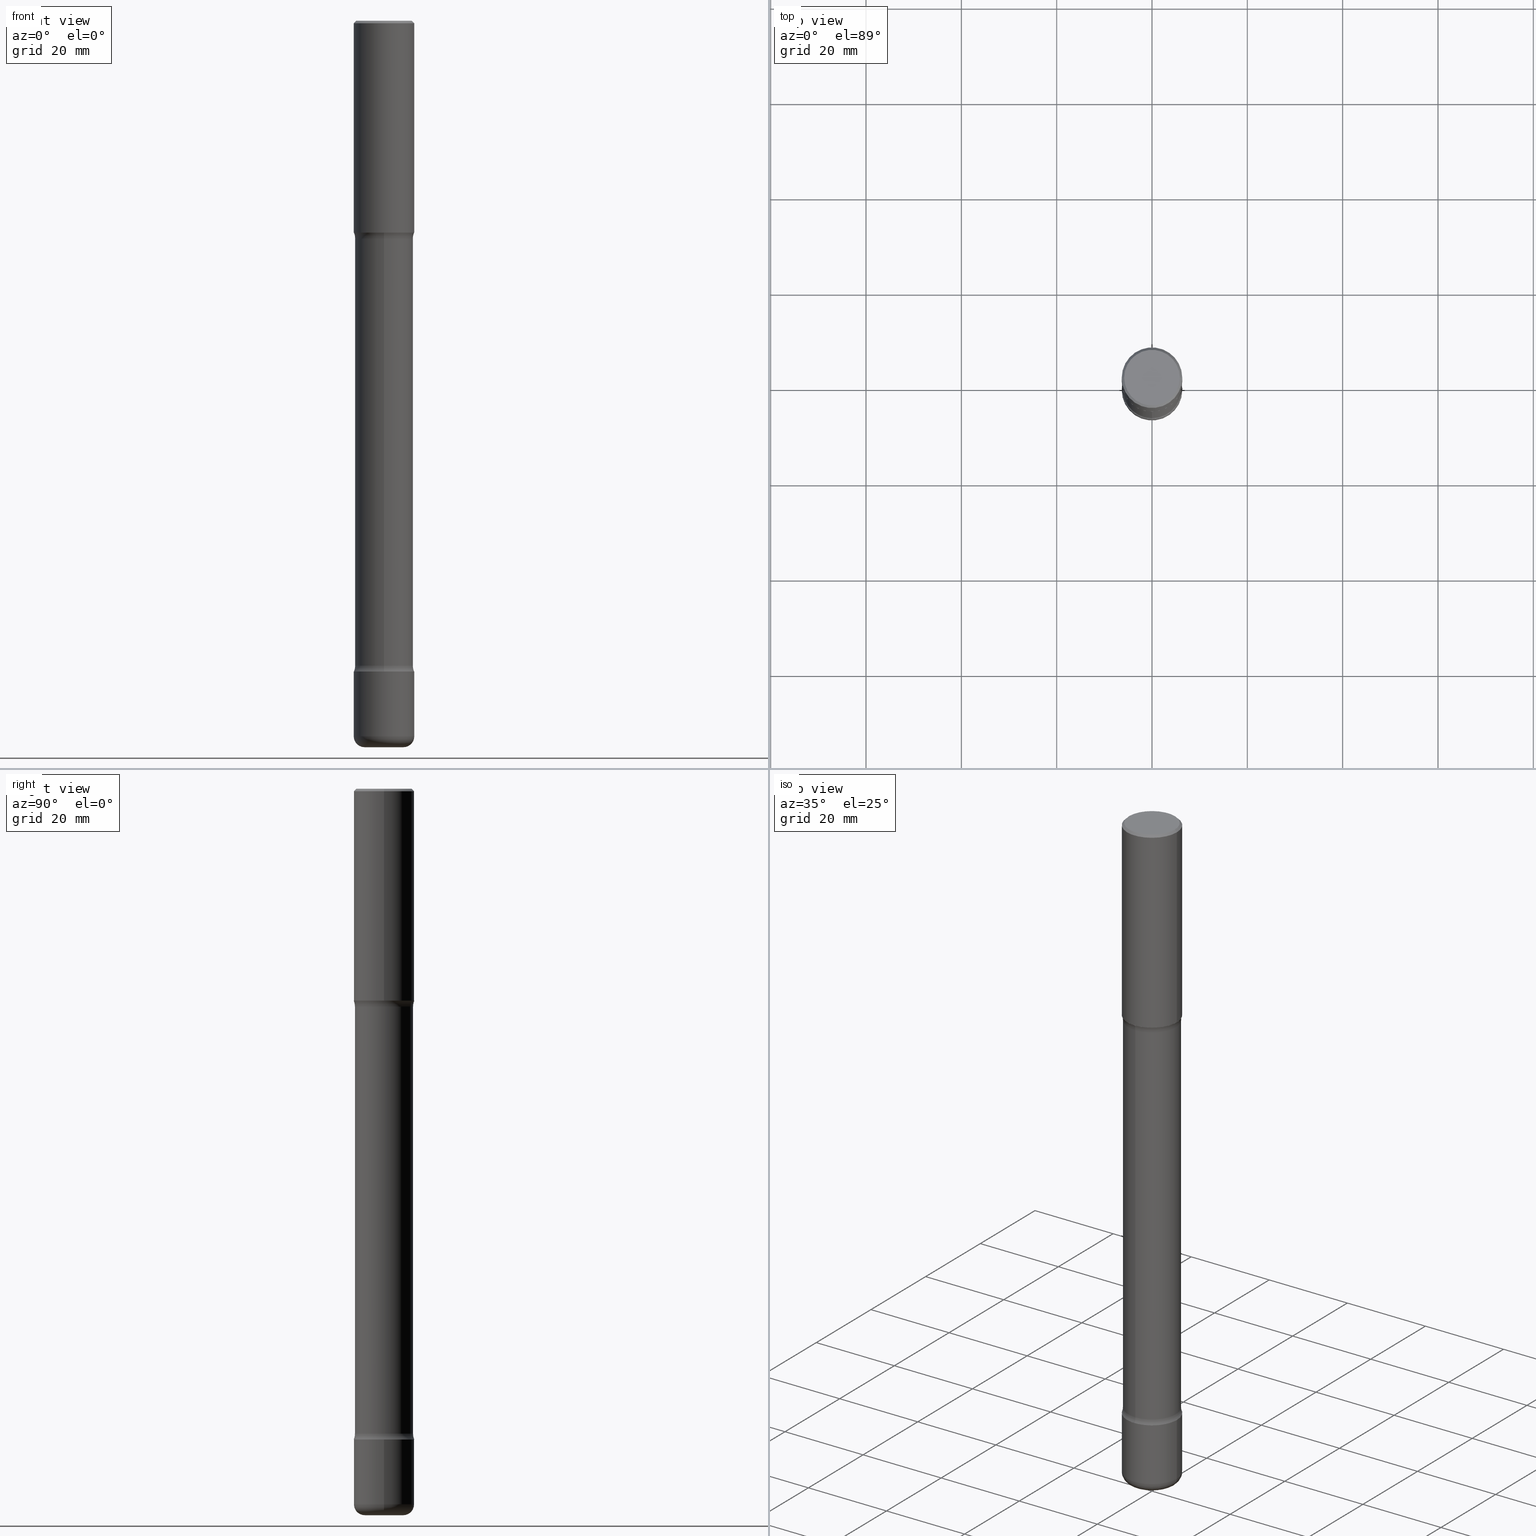
[diagram: canonical four-view strip — front | top / right | iso, engineering-drawing reading convention]
A machine part, canonical four-view strip (front | top / right | iso — engineering-drawing reading convention). The complete STEP part file that produces these views, byte-faithful:
ISO-10303-21;
HEADER;
FILE_DESCRIPTION (( 'STEP AP203' ),
    '1' );
FILE_NAME ('35801.STEP',
    '2024-03-01T23:29:01',
    ( '' ),
    ( '' ),
    'SwSTEP 2.0',
    'SolidWorks 2023',
    '' );
FILE_SCHEMA (( 'CONFIG_CONTROL_DESIGN' ));
ENDSEC;

DATA;
#1 = ORIENTED_EDGE ( 'NONE', *, *, #185, .T. ) ;
#2 = FACE_OUTER_BOUND ( 'NONE', #89, .T. ) ;
#3 = DIRECTION ( 'NONE',  ( 1.000000000000000000, -6.860497997771530774E-15, 4.843475318745101421E-29 ) ) ;
#4 = CARTESIAN_POINT ( 'NONE',  ( 4.890937612370285420E-31, -6.982962677686308865E-17, -0.02000000000000005246 ) ) ;
#5 = PRODUCT_RELATED_PRODUCT_CATEGORY ( 'detail', '', ( #362 ) ) ;
#6 = PRODUCT_DEFINITION_SHAPE ( 'NONE', 'NONE',  #260 ) ;
#7 = CARTESIAN_POINT ( 'NONE',  ( 4.279570410823991847E-29, -6.110092342975509404E-15, -1.750000000000001332 ) ) ;
#8 = ORIENTED_EDGE ( 'NONE', *, *, #151, .F. ) ;
#9 = CARTESIAN_POINT ( 'NONE',  ( 2.548781377355618064E-15, 0.3649999999999815614, -5.326010205144338983 ) ) ;
#10 = CC_DESIGN_APPROVAL ( #150, ( #260 ) ) ;
#11 = VERTEX_POINT ( 'NONE', #97 ) ;
#12 = CLOSED_SHELL ( 'NONE', ( #541, #172, #281, #503, #255, #32 ) ) ;
#13 = DIRECTION ( 'NONE',  ( 6.982962677686265922E-15, 1.000000000000000000, -4.370956789862816416E-15 ) ) ;
#14 = DIRECTION ( 'NONE',  ( -6.982962677686267499E-15, -1.000000000000000000, 0.000000000000000000 ) ) ;
#15 = EDGE_CURVE ( 'NONE', #228, #421, #285, .T. ) ;
#16 = ORIENTED_EDGE ( 'NONE', *, *, #476, .F. ) ;
#17 = UNCERTAINTY_MEASURE_WITH_UNIT (LENGTH_MEASURE( 1.000000000000000082E-05 ), #267, 'distance_accuracy_value', 'NONE');
#18 = VERTEX_POINT ( 'NONE', #368 ) ;
#19 = DIRECTION ( 'NONE',  ( -1.000000000000000000, 6.982962677686265922E-15, -4.876176775795935793E-29 ) ) ;
#20 = APPROVAL_STATUS ( 'not_yet_approved' ) ;
#21 = DIRECTION ( 'NONE',  ( -1.000000000000000000, 6.982962677686265922E-15, -4.876176775795935793E-29 ) ) ;
#22 = AXIS2_PLACEMENT_3D ( 'NONE', #243, #199, #13 ) ;
#23 = AXIS2_PLACEMENT_3D ( 'NONE', #25, #211, #543 ) ;
#24 = DIRECTION ( 'NONE',  ( 6.982962677686265922E-15, 1.000000000000000000, -3.414809992080321627E-15 ) ) ;
#25 = CARTESIAN_POINT ( 'NONE',  ( 1.445272064455416016E-28, -2.063465471256299260E-14, -5.910000000000001030 ) ) ;
#26 = CYLINDRICAL_SURFACE ( 'NONE', #246, 0.2400000000000002409 ) ;
#27 = CALENDAR_DATE ( 2024, 1, 3 ) ;
#28 = VECTOR ( 'NONE', #377, 39.37007874015748143 ) ;
#29 = DIRECTION ( 'NONE',  ( 1.000000000000000000, -6.982962677686265922E-15, 4.876225828469306079E-29 ) ) ;
#30 = AXIS2_PLACEMENT_3D ( 'NONE', #163, #296, #419 ) ;
#31 = VERTEX_POINT ( 'NONE', #154 ) ;
#32 = ADVANCED_FACE ( 'NONE', ( #447 ), #53, .F. ) ;
#33 = ADVANCED_FACE ( 'NONE', ( #293 ), #534, .F. ) ;
#34 = CIRCLE ( 'NONE', #146, 0.2500000000000005551 ) ;
#35 = CIRCLE ( 'NONE', #247, 0.1250000000000000555 ) ;
#36 = ORIENTED_EDGE ( 'NONE', *, *, #399, .T. ) ;
#37 = EDGE_LOOP ( 'NONE', ( #444, #519, #442, #381 ) ) ;
#38 = LINE ( 'NONE', #518, #51 ) ;
#39 = CARTESIAN_POINT ( 'NONE',  ( -2.504081769186479631E-15, -0.3650000000000186984, -5.326010205144336318 ) ) ;
#40 = CIRCLE ( 'NONE', #123, 0.2300000000000001210 ) ;
#41 = CC_DESIGN_DATE_AND_TIME_ASSIGNMENT ( #475, #273, ( #260 ) ) ;
#42 = ORIENTED_EDGE ( 'NONE', *, *, #448, .F. ) ;
#43 = DIRECTION ( 'NONE',  ( -1.000000000000000000, 6.982962677686265922E-15, -4.883557194083112901E-29 ) ) ;
#44 = DIRECTION ( 'NONE',  ( 6.860497997771529985E-15, 1.000000000000000000, 0.000000000000000000 ) ) ;
#45 = CARTESIAN_POINT ( 'NONE',  ( 2.548781377355529317E-15, 0.3649999999999934408, -1.798989794855667235 ) ) ;
#46 = PLANE ( 'NONE',  #350 ) ;
#47 = VERTEX_POINT ( 'NONE', #202 ) ;
#48 = PERSON_AND_ORGANIZATION_ROLE ( 'design_supplier' ) ;
#49 = ADVANCED_FACE ( 'NONE', ( #366 ), #254, .T. ) ;
#50 = EDGE_CURVE ( 'NONE', #355, #387, #538, .T. ) ;
#51 = VECTOR ( 'NONE', #482, 39.37007874015748143 ) ;
#52 = CLOSED_SHELL ( 'NONE', ( #49, #170, #337, #343, #68, #379 ) ) ;
#53 = PLANE ( 'NONE',  #378 ) ;
#54 = DATE_TIME_ROLE ( 'classification_date' ) ;
#55 = DIRECTION ( 'NONE',  ( -2.445468806185136597E-29, 3.491481338843145583E-15, 1.000000000000000000 ) ) ;
#56 = EDGE_CURVE ( 'NONE', #173, #421, #467, .T. ) ;
#57 = CIRCLE ( 'NONE', #528, 0.2399999999999999356 ) ;
#58 = APPLICATION_CONTEXT ( 'configuration controlled 3d designs of mechanical parts and assemblies' ) ;
#59 = AXIS2_PLACEMENT_3D ( 'NONE', #359, #73, #443 ) ;
#60 = DIRECTION ( 'NONE',  ( 6.982962677686265922E-15, 1.000000000000000000, -3.272933499350004525E-15 ) ) ;
#61 = CYLINDRICAL_SURFACE ( 'NONE', #227, 0.2500000000000003886 ) ;
#62 = EDGE_CURVE ( 'NONE', #302, #228, #96, .T. ) ;
#63 = EDGE_CURVE ( 'NONE', #125, #94, #435, .T. ) ;
#64 = AXIS2_PLACEMENT_3D ( 'NONE', #140, #321, #451 ) ;
#65 = DIRECTION ( 'NONE',  ( -2.445468806185136597E-29, 3.491481338843145583E-15, 1.000000000000000000 ) ) ;
#66 = ORIENTED_EDGE ( 'NONE', *, *, #288, .T. ) ;
#67 = DIRECTION ( 'NONE',  ( -1.000000000000000000, 6.982962677686267499E-15, 0.000000000000000000 ) ) ;
#68 = ADVANCED_FACE ( 'NONE', ( #397 ), #365, .F. ) ;
#69 = ORIENTED_EDGE ( 'NONE', *, *, #232, .F. ) ;
#70 = COORDINATED_UNIVERSAL_TIME_OFFSET ( 5, 0, .BEHIND. ) ;
#71 = EDGE_LOOP ( 'NONE', ( #209, #558, #478, #391 ) ) ;
#72 = LOCAL_TIME ( 18, 29, 1.000000000000000000, #559 ) ;
#73 = DIRECTION ( 'NONE',  ( 2.598079946832093802E-29, -3.272933499350004920E-15, -1.000000000000000000 ) ) ;
#74 = AXIS2_PLACEMENT_3D ( 'NONE', #257, #413, #24 ) ;
#75 = CIRCLE ( 'NONE', #526, 0.2500000000000003331 ) ;
#76 = FACE_OUTER_BOUND ( 'NONE', #462, .T. ) ;
#77 = EDGE_LOOP ( 'NONE', ( #216, #524 ) ) ;
#78 = CARTESIAN_POINT ( 'NONE',  ( 1.302459181810417859E-28, -1.859566524174961022E-14, -5.326010205144338094 ) ) ;
#79 = VERTEX_POINT ( 'NONE', #144 ) ;
#80 = EDGE_CURVE ( 'NONE', #18, #521, #412, .T. ) ;
#81 = CARTESIAN_POINT ( 'NONE',  ( 0.2500000000000001110, -1.784954126219746583E-15, -0.02000000000000005246 ) ) ;
#82 = CARTESIAN_POINT ( 'NONE',  ( 0.000000000000000000, 0.000000000000000000, 0.000000000000000000 ) ) ;
#83 = EDGE_LOOP ( 'NONE', ( #485, #120, #547, #188 ) ) ;
#84 = PERSON_AND_ORGANIZATION ( #408, #229 ) ;
#85 = APPROVAL_STATUS ( 'not_yet_approved' ) ;
#86 = AXIS2_PLACEMENT_3D ( 'NONE', #7, #535, #492 ) ;
#87 = CARTESIAN_POINT ( 'NONE',  ( -2.504081769186573506E-15, -0.3650000000000074851, -1.798989794855665014 ) ) ;
#88 = CIRCLE ( 'NONE', #292, 0.2400000000000005185 ) ;
#89 = EDGE_LOOP ( 'NONE', ( #536, #294, #181, #428 ) ) ;
#90 = CARTESIAN_POINT ( 'NONE',  ( 4.890937612370285420E-31, -6.982962677686308865E-17, -0.02000000000000005246 ) ) ;
#91 = ORIENTED_EDGE ( 'NONE', *, *, #298, .T. ) ;
#92 = PERSON_AND_ORGANIZATION ( #408, #229 ) ;
#93 = EDGE_CURVE ( 'NONE', #302, #173, #555, .T. ) ;
#94 = VERTEX_POINT ( 'NONE', #145 ) ;
#95 = CARTESIAN_POINT ( 'NONE',  ( 0.2500000000000006661, -2.238039538198456243E-14, -5.910000000000001030 ) ) ;
#96 = CIRCLE ( 'NONE', #384, 0.2500000000000003331 ) ;
#97 = CARTESIAN_POINT ( 'NONE',  ( 0.2300000000000001210, -1.681434332853599997E-15, 4.268512490111905999E-18 ) ) ;
#98 = DIRECTION ( 'NONE',  ( 2.598079946832093802E-29, -3.272933499350004920E-15, -1.000000000000000000 ) ) ;
#99 = DIRECTION ( 'NONE',  ( 7.105427357601001859E-15, 1.000000000000000000, -3.491481338843145583E-15 ) ) ;
#100 = DIRECTION ( 'NONE',  ( -2.445468806185136597E-29, 3.491481338843145583E-15, 1.000000000000000000 ) ) ;
#101 = CARTESIAN_POINT ( 'NONE',  ( -0.2500000000000001110, 1.675911042644704563E-15, -0.02000000000000005246 ) ) ;
#102 = CARTESIAN_POINT ( 'NONE',  ( 1.314439483324511369E-28, -1.876671219628191278E-14, -5.375000000000001776 ) ) ;
#103 = CC_DESIGN_PERSON_AND_ORGANIZATION_ASSIGNMENT ( #84, #335, ( #157 ) ) ;
#104 = CARTESIAN_POINT ( 'NONE',  ( -0.2500000000000003331, -1.313604145475932337E-15, -1.750000000000001332 ) ) ;
#105 = ORIENTED_EDGE ( 'NONE', *, *, #549, .T. ) ;
#106 = AXIS2_PLACEMENT_3D ( 'NONE', #270, #315, #431 ) ;
#107 = EDGE_LOOP ( 'NONE', ( #516, #331, #414, #119 ) ) ;
#108 = CARTESIAN_POINT ( 'NONE',  ( -0.2500000000000001110, 1.675911042644704563E-15, -0.02000000000000005246 ) ) ;
#109 = CIRCLE ( 'NONE', #193, 0.2399999999999999356 ) ;
#110 = LOCAL_TIME ( 18, 29, 1.000000000000000000, #149 ) ;
#111 = EDGE_CURVE ( 'NONE', #523, #521, #34, .T. ) ;
#112 = ORIENTED_EDGE ( 'NONE', *, *, #370, .F. ) ;
#113 = AXIS2_PLACEMENT_3D ( 'NONE', #87, #197, #44 ) ;
#114 = ORIENTED_EDGE ( 'NONE', *, *, #537, .T. ) ;
#115 = PERSON_AND_ORGANIZATION_ROLE ( 'creator' ) ;
#116 = DIRECTION ( 'NONE',  ( -2.445468806185136597E-29, 3.491481338843145583E-15, 1.000000000000000000 ) ) ;
#117 = DIRECTION ( 'NONE',  ( 1.000000000000000000, -6.982962677686265922E-15, 4.876225828469306079E-29 ) ) ;
#118 = CARTESIAN_POINT ( 'NONE',  ( 1.476819480001517141E-28, -2.081229563337566536E-14, -6.000000000000001776 ) ) ;
#119 = ORIENTED_EDGE ( 'NONE', *, *, #185, .F. ) ;
#120 = ORIENTED_EDGE ( 'NONE', *, *, #62, .T. ) ;
#121 = AXIS2_PLACEMENT_3D ( 'NONE', #182, #189, #349 ) ;
#122 = DIRECTION ( 'NONE',  ( 6.982962677686265922E-15, 1.000000000000000000, -3.272933499350004920E-15 ) ) ;
#123 = AXIS2_PLACEMENT_3D ( 'NONE', #513, #183, #29 ) ;
#124 = FACE_OUTER_BOUND ( 'NONE', #83, .T. ) ;
#125 = VERTEX_POINT ( 'NONE', #213 ) ;
#126 = ADVANCED_FACE ( 'NONE', ( #542 ), #446, .F. ) ;
#127 = DIRECTION ( 'NONE',  ( 2.598079946832093802E-29, -3.272933499350004920E-15, -1.000000000000000000 ) ) ;
#128 = ORIENTED_EDGE ( 'NONE', *, *, #50, .T. ) ;
#129 = EDGE_LOOP ( 'NONE', ( #269, #235, #311, #268 ) ) ;
#130 = APPROVAL_DATE_TIME ( #508, #223 ) ;
#131 = LINE ( 'NONE', #357, #307 ) ;
#132 = PERSON_AND_ORGANIZATION_ROLE ( 'creator' ) ;
#133 = CIRCLE ( 'NONE', #466, 0.1250000000000000555 ) ;
#134 = VECTOR ( 'NONE', #263, 39.37007874015748143 ) ;
#135 = CC_DESIGN_PERSON_AND_ORGANIZATION_ASSIGNMENT ( #313, #132, ( #332 ) ) ;
#136 = CIRCLE ( 'NONE', #217, 0.2300000000000001210 ) ;
#137 = CARTESIAN_POINT ( 'NONE',  ( -1.646519519465021226E-15, -0.2400000000000210298, -6.000000000000000888 ) ) ;
#138 = FACE_OUTER_BOUND ( 'NONE', #37, .T. ) ;
#139 = EDGE_CURVE ( 'NONE', #233, #18, #300, .T. ) ;
#140 = CARTESIAN_POINT ( 'NONE',  ( -3.261302786302777691E-29, -4.226060494179454767E-14, -5.375000000000000888 ) ) ;
#141 = ORIENTED_EDGE ( 'NONE', *, *, #390, .T. ) ;
#142 = DIRECTION ( 'NONE',  ( 2.598079946832093802E-29, -3.272933499350004920E-15, -1.000000000000000000 ) ) ;
#143 = DIRECTION ( 'NONE',  ( 2.445468806185136597E-29, -3.491481338843145583E-15, -1.000000000000000000 ) ) ;
#144 = CARTESIAN_POINT ( 'NONE',  ( -1.715124499442752926E-15, -0.2500000000000189293, -5.375000000000000888 ) ) ;
#145 = CARTESIAN_POINT ( 'NONE',  ( -1.715124499442852322E-15, -0.2500000000000079381, -1.750000000000000444 ) ) ;
#146 = AXIS2_PLACEMENT_3D ( 'NONE', #539, #100, #371 ) ;
#147 = DIRECTION ( 'NONE',  ( -2.445468806185136597E-29, 3.491481338843145583E-15, 1.000000000000000000 ) ) ;
#148 = CARTESIAN_POINT ( 'NONE',  ( 0.000000000000000000, 0.000000000000000000, 0.000000000000000000 ) ) ;
#149 = COORDINATED_UNIVERSAL_TIME_OFFSET ( 5, 0, .BEHIND. ) ;
#150 = APPROVAL ( #424, 'UNSPECIFIED' ) ;
#151 = EDGE_CURVE ( 'NONE', #387, #355, #425, .T. ) ;
#152 = EDGE_CURVE ( 'NONE', #11, #264, #40, .T. ) ;
#153 = PLANE ( 'NONE',  #552 ) ;
#154 = CARTESIAN_POINT ( 'NONE',  ( 1.675911042644746175E-15, 0.2399999999999934408, -1.798989794855667013 ) ) ;
#155 = SHAPE_DEFINITION_REPRESENTATION ( #6, #249 ) ;
#156 = PLANE ( 'NONE',  #515 ) ;
#157 = SECURITY_CLASSIFICATION ( '', '', #473 ) ;
#158 = DIRECTION ( 'NONE',  ( 2.438088387897960049E-29, -3.491481338843145188E-15, -1.000000000000000000 ) ) ;
#159 = ADVANCED_FACE ( 'NONE', ( #297 ), #26, .T. ) ;
#160 = CIRCLE ( 'NONE', #74, 0.2400000000000005185 ) ;
#161 = AXIS2_PLACEMENT_3D ( 'NONE', #470, #65, #219 ) ;
#162 = DIRECTION ( 'NONE',  ( 6.982962677686265922E-15, 1.000000000000000000, -4.370956789862816416E-15 ) ) ;
#163 = CARTESIAN_POINT ( 'NONE',  ( 0.1600000000000005584, -2.175192874099279906E-14, -5.910000000000001030 ) ) ;
#164 = ORIENTED_EDGE ( 'NONE', *, *, #210, .F. ) ;
#165 = EDGE_LOOP ( 'NONE', ( #36, #436, #69, #191 ) ) ;
#166 = CALENDAR_DATE ( 2024, 1, 3 ) ;
#167 = AXIS2_PLACEMENT_3D ( 'NONE', #4, #184, #354 ) ;
#168 = ORIENTED_EDGE ( 'NONE', *, *, #250, .F. ) ;
#169 = CIRCLE ( 'NONE', #106, 0.2500000000000005551 ) ;
#170 = ADVANCED_FACE ( 'NONE', ( #375 ), #218, .T. ) ;
#171 = DIRECTION ( 'NONE',  ( 6.982962677686265922E-15, 1.000000000000000000, -3.272933499350004920E-15 ) ) ;
#172 = ADVANCED_FACE ( 'NONE', ( #138 ), #204, .T. ) ;
#173 = VERTEX_POINT ( 'NONE', #101 ) ;
#174 = PERSON_AND_ORGANIZATION ( #408, #229 ) ;
#175 = CARTESIAN_POINT ( 'NONE',  ( 3.874772629991013764E-29, -7.032397495765489425E-15, -1.798989794855666124 ) ) ;
#176 = CARTESIAN_POINT ( 'NONE',  ( 0.2500000000000002776, -2.051245286570348262E-14, -5.375000000000001776 ) ) ;
#177 = APPROVAL_ROLE ( '' ) ;
#178 = ORIENTED_EDGE ( 'NONE', *, *, #496, .F. ) ;
#179 = AXIS2_PLACEMENT_3D ( 'NONE', #501, #55, #251 ) ;
#180 = DIRECTION ( 'NONE',  ( 6.982962677686265922E-15, 1.000000000000000000, -3.278217592397102057E-15 ) ) ;
#181 = ORIENTED_EDGE ( 'NONE', *, *, #50, .F. ) ;
#182 = CARTESIAN_POINT ( 'NONE',  ( 0.000000000000000000, 0.000000000000000000, 0.000000000000000000 ) ) ;
#183 = DIRECTION ( 'NONE',  ( -2.445468806185136597E-29, 3.491481338843145583E-15, 1.000000000000000000 ) ) ;
#184 = DIRECTION ( 'NONE',  ( -2.445468806185136597E-29, 3.491481338843145583E-15, 1.000000000000000000 ) ) ;
#185 = EDGE_CURVE ( 'NONE', #31, #47, #506, .T. ) ;
#186 = CARTESIAN_POINT ( 'NONE',  ( 1.302459181810417859E-28, -1.859566524174961022E-14, -5.326010205144338094 ) ) ;
#187 = DIRECTION ( 'NONE',  ( -2.445468806185136597E-29, 3.491481338843145583E-15, 1.000000000000000000 ) ) ;
#188 = ORIENTED_EDGE ( 'NONE', *, *, #56, .F. ) ;
#189 = DIRECTION ( 'NONE',  ( -2.445468806185136597E-29, 3.491481338843145583E-15, 1.000000000000000000 ) ) ;
#190 = VECTOR ( 'NONE', #361, 39.37007874015748143 ) ;
#191 = ORIENTED_EDGE ( 'NONE', *, *, #15, .F. ) ;
#192 = LINE ( 'NONE', #364, #190 ) ;
#193 = AXIS2_PLACEMENT_3D ( 'NONE', #327, #493, #214 ) ;
#194 = CC_DESIGN_APPROVAL ( #329, ( #157 ) ) ;
#195 = LINE ( 'NONE', #398, #318 ) ;
#196 = CARTESIAN_POINT ( 'NONE',  ( 3.726355025978772891E-29, -6.902328261138143864E-15, -1.750000000000001332 ) ) ;
#197 = DIRECTION ( 'NONE',  ( 1.000000000000000000, -6.860497997771530774E-15, 4.843475318745101421E-29 ) ) ;
#198 = VERTEX_POINT ( 'NONE', #406 ) ;
#199 = DIRECTION ( 'NONE',  ( 2.598079946832093802E-29, -3.272933499350004920E-15, -1.000000000000000000 ) ) ;
#200 = FACE_OUTER_BOUND ( 'NONE', #551, .T. ) ;
#201 = EDGE_CURVE ( 'NONE', #556, #79, #479, .T. ) ;
#202 = CARTESIAN_POINT ( 'NONE',  ( 1.745740669421611445E-15, 0.2499999999999941158, -1.750000000000001998 ) ) ;
#203 = APPROVAL_ROLE ( '' ) ;
#204 = TOROIDAL_SURFACE ( 'NONE', #271, 0.1600000000000005584, 0.09000000000000020484 ) ;
#205 = CARTESIAN_POINT ( 'NONE',  ( 1.301711542963119448E-28, -1.860637185557252676E-14, -5.326010205144338094 ) ) ;
#206 = DIRECTION ( 'NONE',  ( -2.445468806185136877E-29, 3.491481338843145188E-15, 1.000000000000000000 ) ) ;
#207 = PERSON_AND_ORGANIZATION ( #408, #229 ) ;
#208 = CALENDAR_DATE ( 2024, 1, 3 ) ;
#209 = ORIENTED_EDGE ( 'NONE', *, *, #152, .F. ) ;
#210 = EDGE_CURVE ( 'NONE', #521, #387, #195, .T. ) ;
#211 = DIRECTION ( 'NONE',  ( -2.445468806185136597E-29, 3.491481338843145583E-15, 1.000000000000000000 ) ) ;
#212 = ORIENTED_EDGE ( 'NONE', *, *, #298, .F. ) ;
#213 = CARTESIAN_POINT ( 'NONE',  ( -1.680822009453992684E-15, -0.2400000000000076239, -1.798989794855665236 ) ) ;
#214 = DIRECTION ( 'NONE',  ( 6.982962677686265922E-15, 1.000000000000000000, -4.553079989440439881E-15 ) ) ;
#215 = DIRECTION ( 'NONE',  ( 6.982962677686265922E-15, 1.000000000000000000, -4.553079989440434359E-15 ) ) ;
#216 = ORIENTED_EDGE ( 'NONE', *, *, #370, .T. ) ;
#217 = AXIS2_PLACEMENT_3D ( 'NONE', #509, #458, #117 ) ;
#218 = CONICAL_SURFACE ( 'NONE', #402, 0.2500000000000001110, 0.7853981633974476129 ) ;
#219 = DIRECTION ( 'NONE',  ( 1.000000000000000000, -6.982962677686267499E-15, 4.876176775795936353E-29 ) ) ;
#220 = COORDINATED_UNIVERSAL_TIME_OFFSET ( 5, 0, .BEHIND. ) ;
#221 = CARTESIAN_POINT ( 'NONE',  ( -0.2500000000000002220, 1.776356839400252042E-15, -1.229733772563727566E-29 ) ) ;
#222 = DIRECTION ( 'NONE',  ( 1.000000000000000000, -6.982962677686270655E-15, 0.000000000000000000 ) ) ;
#223 = APPROVAL ( #85, 'UNSPECIFIED' ) ;
#224 = DESIGN_CONTEXT ( 'detailed design', #532, 'design' ) ;
#225 = PERSON_AND_ORGANIZATION ( #408, #229 ) ;
#226 = AXIS2_PLACEMENT_3D ( 'NONE', #196, #400, #180 ) ;
#227 = AXIS2_PLACEMENT_3D ( 'NONE', #415, #380, #418 ) ;
#228 = VERTEX_POINT ( 'NONE', #394 ) ;
#229 = ORGANIZATION ( 'UNSPECIFIED', 'UNSPECIFIED', '' ) ;
#230 = LENGTH_MEASURE_WITH_UNIT ( LENGTH_MEASURE( 0.02539999999999999897 ), #240 );
#231 = DIRECTION ( 'NONE',  ( -2.445468806185136597E-29, 3.491481338843145583E-15, 1.000000000000000000 ) ) ;
#232 = EDGE_CURVE ( 'NONE', #421, #173, #453, .T. ) ;
#233 = VERTEX_POINT ( 'NONE', #522 ) ;
#234 = DIMENSIONAL_EXPONENTS ( 1.000000000000000000, 0.000000000000000000, 0.000000000000000000, 0.000000000000000000, 0.000000000000000000, 0.000000000000000000, 0.000000000000000000 ) ;
#235 = ORIENTED_EDGE ( 'NONE', *, *, #277, .T. ) ;
#236 = AXIS2_PLACEMENT_3D ( 'NONE', #323, #99, #286 ) ;
#237 = DIRECTION ( 'NONE',  ( -1.000000000000000000, 6.982962677686265922E-15, -4.883557194083112901E-29 ) ) ;
#238 = ORIENTED_EDGE ( 'NONE', *, *, #399, .F. ) ;
#239 = ORIENTED_EDGE ( 'NONE', *, *, #139, .F. ) ;
#240 =( LENGTH_UNIT ( ) NAMED_UNIT ( * ) SI_UNIT ( $, .METRE. ) );
#241 = DIRECTION ( 'NONE',  ( 1.000000000000000000, -6.982962677686269077E-15, 0.000000000000000000 ) ) ;
#242 = ORIENTED_EDGE ( 'NONE', *, *, #490, .F. ) ;
#243 = CARTESIAN_POINT ( 'NONE',  ( 1.314439483324511369E-28, -1.876671219628191278E-14, -5.375000000000001776 ) ) ;
#244 = LOCAL_TIME ( 18, 29, 1.000000000000000000, #256 ) ;
#245 = CARTESIAN_POINT ( 'NONE',  ( -0.2500000000000002776, -1.792432661502220065E-14, -5.375000000000001776 ) ) ;
#246 = AXIS2_PLACEMENT_3D ( 'NONE', #382, #98, #215 ) ;
#247 = AXIS2_PLACEMENT_3D ( 'NONE', #9, #43, #14 ) ;
#248 = ORIENTED_EDGE ( 'NONE', *, *, #261, .T. ) ;
#249 = ADVANCED_BREP_SHAPE_REPRESENTATION ( '35801', ( #452, #432, #450, #454 ), #342 ) ;
#250 = EDGE_CURVE ( 'NONE', #11, #421, #131, .T. ) ;
#251 = DIRECTION ( 'NONE',  ( 1.000000000000000000, -6.982962677686259611E-15, 0.000000000000000000 ) ) ;
#252 = CARTESIAN_POINT ( 'NONE',  ( 1.314439483324511369E-28, -1.876671219628191278E-14, -5.375000000000001776 ) ) ;
#253 = TOROIDAL_SURFACE ( 'NONE', #23, 0.1600000000000005584, 0.09000000000000020484 ) ;
#254 = CYLINDRICAL_SURFACE ( 'NONE', #504, 0.2500000000000002220 ) ;
#255 = ADVANCED_FACE ( 'NONE', ( #320 ), #61, .T. ) ;
#256 = COORDINATED_UNIVERSAL_TIME_OFFSET ( 5, 0, .BEHIND. ) ;
#257 = CARTESIAN_POINT ( 'NONE',  ( 3.853634429592694340E-29, -7.062668601847533833E-15, -1.798989794855666124 ) ) ;
#258 = ORIENTED_EDGE ( 'NONE', *, *, #441, .F. ) ;
#259 = AXIS2_PLACEMENT_3D ( 'NONE', #416, #116, #463 ) ;
#260 = PRODUCT_DEFINITION ( 'UNKNOWN', '', #332, #224 ) ;
#261 = EDGE_CURVE ( 'NONE', #264, #173, #540, .T. ) ;
#262 = DIRECTION ( 'NONE',  ( 6.982962677686265922E-15, 1.000000000000000000, -4.553079989440434359E-15 ) ) ;
#263 = DIRECTION ( 'NONE',  ( -2.445468806185136877E-29, 3.491481338843145188E-15, 1.000000000000000000 ) ) ;
#264 = VERTEX_POINT ( 'NONE', #338 ) ;
#265 = APPROVAL_PERSON_ORGANIZATION ( #553, #150, #510 ) ;
#266 = CARTESIAN_POINT ( 'NONE',  ( 4.890937612370285420E-31, -6.982962677686308865E-17, -0.02000000000000005246 ) ) ;
#267 =( CONVERSION_BASED_UNIT ( 'INCH', #230 ) LENGTH_UNIT ( ) NAMED_UNIT ( #234 ) );
#268 = ORIENTED_EDGE ( 'NONE', *, *, #422, .F. ) ;
#269 = ORIENTED_EDGE ( 'NONE', *, *, #80, .F. ) ;
#270 = CARTESIAN_POINT ( 'NONE',  ( 1.445272064455416016E-28, -2.063465471256299260E-14, -5.910000000000001030 ) ) ;
#271 = AXIS2_PLACEMENT_3D ( 'NONE', #440, #147, #363 ) ;
#272 = AXIS2_PLACEMENT_3D ( 'NONE', #45, #237, #434 ) ;
#273 = DATE_TIME_ROLE ( 'creation_date' ) ;
#274 = CC_DESIGN_PERSON_AND_ORGANIZATION_ASSIGNMENT ( #92, #48, ( #332 ) ) ;
#275 = ORIENTED_EDGE ( 'NONE', *, *, #422, .T. ) ;
#276 = DIRECTION ( 'NONE',  ( -1.000000000000000000, 6.982962677686267499E-15, 0.000000000000000000 ) ) ;
#277 = EDGE_CURVE ( 'NONE', #18, #233, #560, .T. ) ;
#278 = CYLINDRICAL_SURFACE ( 'NONE', #121, 0.2500000000000003886 ) ;
#279 = FACE_OUTER_BOUND ( 'NONE', #460, .T. ) ;
#280 = ORIENTED_EDGE ( 'NONE', *, *, #496, .T. ) ;
#281 = ADVANCED_FACE ( 'NONE', ( #455 ), #153, .T. ) ;
#282 = AXIS2_PLACEMENT_3D ( 'NONE', #186, #142, #389 ) ;
#283 = CIRCLE ( 'NONE', #30, 0.09000000000000020484 ) ;
#284 = DIRECTION ( 'NONE',  ( 1.000000000000000000, -6.982962677686267499E-15, 0.000000000000000000 ) ) ;
#285 = LINE ( 'NONE', #449, #497 ) ;
#286 = DIRECTION ( 'NONE',  ( -1.000000000000000000, 7.105427357601017636E-15, 0.000000000000000000 ) ) ;
#287 = DIRECTION ( 'NONE',  ( -2.445468806185136597E-29, 3.491481338843145583E-15, 1.000000000000000000 ) ) ;
#288 = EDGE_CURVE ( 'NONE', #198, #301, #57, .T. ) ;
#289 = CARTESIAN_POINT ( 'NONE',  ( -3.261302786302777691E-29, -4.226060494179454767E-14, -5.375000000000000888 ) ) ;
#290 = TOROIDAL_SURFACE ( 'NONE', #282, 0.3650000000000001577, 0.1250000000000000555 ) ;
#291 = CLOSED_SHELL ( 'NONE', ( #351, #383, #527, #126, #314, #33, #525, #159 ) ) ;
#292 = AXIS2_PLACEMENT_3D ( 'NONE', #396, #353, #445 ) ;
#293 = FACE_OUTER_BOUND ( 'NONE', #409, .T. ) ;
#294 = ORIENTED_EDGE ( 'NONE', *, *, #210, .T. ) ;
#295 = DATE_AND_TIME ( #208, #110 ) ;
#296 = DIRECTION ( 'NONE',  ( -6.982962677686266711E-15, -1.000000000000000000, 3.491481338843145583E-15 ) ) ;
#297 = FACE_OUTER_BOUND ( 'NONE', #420, .T. ) ;
#298 = EDGE_CURVE ( 'NONE', #301, #198, #109, .T. ) ;
#299 = ORIENTED_EDGE ( 'NONE', *, *, #304, .T. ) ;
#300 = CIRCLE ( 'NONE', #417, 0.1600000000000005584 ) ;
#301 = VERTEX_POINT ( 'NONE', #374 ) ;
#302 = VERTEX_POINT ( 'NONE', #104 ) ;
#303 = DIRECTION ( 'NONE',  ( 2.445468806185136597E-29, -3.491481338843145583E-15, -1.000000000000000000 ) ) ;
#304 = EDGE_CURVE ( 'NONE', #125, #31, #160, .T. ) ;
#305 = DIRECTION ( 'NONE',  ( 2.438088387897960049E-29, -3.491481338843145188E-15, -1.000000000000000000 ) ) ;
#306 = LOCAL_TIME ( 18, 29, 1.000000000000000000, #220 ) ;
#307 = VECTOR ( 'NONE', #484, 39.37007874015748854 ) ;
#308 =( NAMED_UNIT ( * ) PLANE_ANGLE_UNIT ( ) SI_UNIT ( $, .RADIAN. ) );
#309 = CYLINDRICAL_SURFACE ( 'NONE', #161, 0.2500000000000002220 ) ;
#310 = DIRECTION ( 'NONE',  ( 6.982962677686265922E-15, 1.000000000000000000, -3.272933499350004920E-15 ) ) ;
#311 = ORIENTED_EDGE ( 'NONE', *, *, #336, .T. ) ;
#312 = DIRECTION ( 'NONE',  ( 2.598079946832093802E-29, -3.272933499350004920E-15, -1.000000000000000000 ) ) ;
#313 = PERSON_AND_ORGANIZATION ( #408, #229 ) ;
#314 = ADVANCED_FACE ( 'NONE', ( #373 ), #156, .F. ) ;
#315 = DIRECTION ( 'NONE',  ( -2.445468806185136597E-29, 3.491481338843145583E-15, 1.000000000000000000 ) ) ;
#316 = PERSON_AND_ORGANIZATION ( #408, #229 ) ;
#317 = EDGE_LOOP ( 'NONE', ( #164, #275, #114, #8 ) ) ;
#318 = VECTOR ( 'NONE', #488, 39.37007874015748143 ) ;
#319 = TOROIDAL_SURFACE ( 'NONE', #376, 0.3650000000000004907, 0.1250000000000000000 ) ;
#320 = FACE_OUTER_BOUND ( 'NONE', #317, .T. ) ;
#321 = DIRECTION ( 'NONE',  ( -2.598079946832093241E-29, 3.272933499350004525E-15, 1.000000000000000000 ) ) ;
#322 = CONICAL_SURFACE ( 'NONE', #554, 0.2500000000000001110, 0.7853981633974476129 ) ;
#323 = CARTESIAN_POINT ( 'NONE',  ( -0.1600000000000005584, -1.949778633534683129E-14, -5.910000000000001030 ) ) ;
#324 = DIRECTION ( 'NONE',  ( 1.000000000000000000, -6.982962677686267499E-15, 4.876176775795936353E-29 ) ) ;
#325 = CALENDAR_DATE ( 2024, 1, 3 ) ;
#326 = ORIENTED_EDGE ( 'NONE', *, *, #390, .F. ) ;
#327 = CARTESIAN_POINT ( 'NONE',  ( 1.301711542963119448E-28, -1.860637185557252676E-14, -5.326010205144338094 ) ) ;
#328 = CARTESIAN_POINT ( 'NONE',  ( -0.2500000000000006661, -1.885829787316274213E-14, -5.910000000000001030 ) ) ;
#329 = APPROVAL ( #20, 'UNSPECIFIED' ) ;
#330 = CARTESIAN_POINT ( 'NONE',  ( 4.279570410823991847E-29, -6.110092342975509404E-15, -1.750000000000001332 ) ) ;
#331 = ORIENTED_EDGE ( 'NONE', *, *, #63, .T. ) ;
#332 = PRODUCT_DEFINITION_FORMATION_WITH_SPECIFIED_SOURCE ( 'ANY', '', #362, .NOT_KNOWN. ) ;
#333 = VECTOR ( 'NONE', #548, 39.37007874015748854 ) ;
#334 = DIRECTION ( 'NONE',  ( 2.598079946832093802E-29, -3.272933499350004920E-15, -1.000000000000000000 ) ) ;
#335 = PERSON_AND_ORGANIZATION_ROLE ( 'classification_officer' ) ;
#336 = EDGE_CURVE ( 'NONE', #233, #523, #283, .T. ) ;
#337 = ADVANCED_FACE ( 'NONE', ( #459 ), #322, .T. ) ;
#338 = CARTESIAN_POINT ( 'NONE',  ( -0.2300000000000001210, 1.640996229256273111E-15, 4.268512490089056766E-18 ) ) ;
#339 = DIRECTION ( 'NONE',  ( -1.000000000000000000, 6.982962677686265922E-15, -4.876176775795935793E-29 ) ) ;
#340 = APPROVAL_DATE_TIME ( #550, #150 ) ;
#341 = AXIS2_PLACEMENT_3D ( 'NONE', #439, #187, #284 ) ;
#342 =( GEOMETRIC_REPRESENTATION_CONTEXT ( 3 ) GLOBAL_UNCERTAINTY_ASSIGNED_CONTEXT ( ( #17 ) ) GLOBAL_UNIT_ASSIGNED_CONTEXT ( ( #267, #308, #486 ) ) REPRESENTATION_CONTEXT ( 'NONE', 'WORKASPACE' ) );
#343 = ADVANCED_FACE ( 'NONE', ( #344 ), #46, .F. ) ;
#344 = FACE_OUTER_BOUND ( 'NONE', #77, .T. ) ;
#345 = CYLINDRICAL_SURFACE ( 'NONE', #529, 0.2400000000000002409 ) ;
#346 = ORIENTED_EDGE ( 'NONE', *, *, #441, .T. ) ;
#347 = DIRECTION ( 'NONE',  ( 1.000000000000000000, -6.982962677686259611E-15, 0.000000000000000000 ) ) ;
#348 = CARTESIAN_POINT ( 'NONE',  ( 1.606081415867842053E-15, 0.2300000000000001210, -8.009064516888736730E-16 ) ) ;
#349 = DIRECTION ( 'NONE',  ( 1.000000000000000000, -6.982962677686267499E-15, 4.876176775795935793E-29 ) ) ;
#350 = AXIS2_PLACEMENT_3D ( 'NONE', #348, #305, #339 ) ;
#351 = ADVANCED_FACE ( 'NONE', ( #76 ), #345, .T. ) ;
#352 = CARTESIAN_POINT ( 'NONE',  ( 1.745740669421699206E-15, 0.2499999999999814315, -5.375000000000002665 ) ) ;
#353 = DIRECTION ( 'NONE',  ( 2.598079946832093802E-29, -3.272933499350004920E-15, -1.000000000000000000 ) ) ;
#354 = DIRECTION ( 'NONE',  ( 1.000000000000000000, -6.982962677686267499E-15, 0.000000000000000000 ) ) ;
#355 = VERTEX_POINT ( 'NONE', #176 ) ;
#356 = FACE_OUTER_BOUND ( 'NONE', #107, .T. ) ;
#357 = CARTESIAN_POINT ( 'NONE',  ( 0.2500000000000001110, -1.784954126219746583E-15, -0.02000000000000005246 ) ) ;
#358 = CIRCLE ( 'NONE', #226, 0.2500000000000010547 ) ;
#359 = CARTESIAN_POINT ( 'NONE',  ( 3.726355025978772891E-29, -6.902328261138143864E-15, -1.750000000000001332 ) ) ;
#360 = APPROVAL_PERSON_ORGANIZATION ( #316, #223, #177 ) ;
#361 = DIRECTION ( 'NONE',  ( 2.598079946832093802E-29, -3.272933499350004525E-15, -1.000000000000000000 ) ) ;
#362 = PRODUCT ( '35801', '35801', '', ( #500 ) ) ;
#363 = DIRECTION ( 'NONE',  ( 1.000000000000000000, -6.982962677686273021E-15, 4.883557194083115143E-29 ) ) ;
#364 = CARTESIAN_POINT ( 'NONE',  ( 1.675911042644853263E-15, 0.2399999999999794520, -6.000000000000002665 ) ) ;
#365 = PLANE ( 'NONE',  #86 ) ;
#366 = FACE_OUTER_BOUND ( 'NONE', #165, .T. ) ;
#367 = DIRECTION ( 'NONE',  ( 6.982962677686265922E-15, 1.000000000000000000, -4.553079989440439881E-15 ) ) ;
#368 = CARTESIAN_POINT ( 'NONE',  ( -0.1600000000000005584, -1.933515876450272677E-14, -6.000000000000001776 ) ) ;
#369 = DATE_AND_TIME ( #325, #244 ) ;
#370 = EDGE_CURVE ( 'NONE', #264, #11, #136, .T. ) ;
#371 = DIRECTION ( 'NONE',  ( 1.000000000000000000, -6.982962677686262766E-15, 0.000000000000000000 ) ) ;
#372 = DIRECTION ( 'NONE',  ( 0.000000000000000000, 0.000000000000000000, 1.000000000000000000 ) ) ;
#373 = FACE_OUTER_BOUND ( 'NONE', #471, .T. ) ;
#374 = CARTESIAN_POINT ( 'NONE',  ( 1.675911042644833344E-15, 0.2399999999999813116, -5.326010205144338983 ) ) ;
#375 = FACE_OUTER_BOUND ( 'NONE', #71, .T. ) ;
#376 = AXIS2_PLACEMENT_3D ( 'NONE', #472, #312, #310 ) ;
#377 = DIRECTION ( 'NONE',  ( 2.598079946832093802E-29, -3.272933499350004525E-15, -1.000000000000000000 ) ) ;
#378 = AXIS2_PLACEMENT_3D ( 'NONE', #289, #407, #19 ) ;
#379 = ADVANCED_FACE ( 'NONE', ( #124 ), #309, .T. ) ;
#380 = DIRECTION ( 'NONE',  ( -2.445468806185136597E-29, 3.491481338843145583E-15, 1.000000000000000000 ) ) ;
#381 = ORIENTED_EDGE ( 'NONE', *, *, #336, .F. ) ;
#382 = CARTESIAN_POINT ( 'NONE',  ( 1.476819480001517141E-28, -2.081229563337566536E-14, -6.000000000000001776 ) ) ;
#383 = ADVANCED_FACE ( 'NONE', ( #279 ), #290, .F. ) ;
#384 = AXIS2_PLACEMENT_3D ( 'NONE', #483, #487, #477 ) ;
#385 = LOCAL_TIME ( 18, 29, 1.000000000000000000, #70 ) ;
#386 = DIRECTION ( 'NONE',  ( 1.000000000000000000, 0.000000000000000000, 0.000000000000000000 ) ) ;
#387 = VERTEX_POINT ( 'NONE', #245 ) ;
#388 = ORIENTED_EDGE ( 'NONE', *, *, #476, .T. ) ;
#389 = DIRECTION ( 'NONE',  ( 6.982962677686265922E-15, 1.000000000000000000, -3.272933499350004920E-15 ) ) ;
#390 = EDGE_CURVE ( 'NONE', #31, #125, #88, .T. ) ;
#391 = ORIENTED_EDGE ( 'NONE', *, *, #261, .F. ) ;
#392 = AXIS2_PLACEMENT_3D ( 'NONE', #102, #287, #222 ) ;
#393 = EDGE_LOOP ( 'NONE', ( #168, #112, #248, #430 ) ) ;
#394 = CARTESIAN_POINT ( 'NONE',  ( 0.2500000000000003331, -7.855833012397078448E-15, -1.750000000000001332 ) ) ;
#395 = EDGE_LOOP ( 'NONE', ( #512, #326, #1, #105 ) ) ;
#396 = CARTESIAN_POINT ( 'NONE',  ( 3.853634429592694340E-29, -7.062668601847533833E-15, -1.798989794855666124 ) ) ;
#397 = FACE_OUTER_BOUND ( 'NONE', #474, .T. ) ;
#398 = CARTESIAN_POINT ( 'NONE',  ( -0.2500000000000003886, 1.776356839400253226E-15, -1.229733772563728407E-29 ) ) ;
#399 = EDGE_CURVE ( 'NONE', #228, #302, #75, .T. ) ;
#400 = DIRECTION ( 'NONE',  ( 2.598079946832093802E-29, -3.272933499350004920E-15, -1.000000000000000000 ) ) ;
#401 = CC_DESIGN_APPROVAL ( #223, ( #332 ) ) ;
#402 = AXIS2_PLACEMENT_3D ( 'NONE', #90, #143, #276 ) ;
#403 = TOROIDAL_SURFACE ( 'NONE', #514, 0.3650000000000001577, 0.1250000000000000555 ) ;
#404 = DIRECTION ( 'NONE',  ( -2.445468806185136597E-29, 3.491481338843145583E-15, 1.000000000000000000 ) ) ;
#405 = ORIENTED_EDGE ( 'NONE', *, *, #549, .F. ) ;
#406 = CARTESIAN_POINT ( 'NONE',  ( -1.680822009453894274E-15, -0.2400000000000185318, -5.326010205144336318 ) ) ;
#407 = DIRECTION ( 'NONE',  ( 2.438088387897960049E-29, -3.491481338843145188E-15, -1.000000000000000000 ) ) ;
#408 = PERSON ( 'UNSPECIFIED', 'UNSPECIFIED', 'UNSPECIFIED', ('UNSPECIFIED'), ('UNSPECIFIED'), ('UNSPECIFIED') ) ;
#409 = EDGE_LOOP ( 'NONE', ( #429, #280 ) ) ;
#410 = CARTESIAN_POINT ( 'NONE',  ( 1.467281283711082406E-28, -2.094888803305887902E-14, -6.000000000000001776 ) ) ;
#411 = EDGE_CURVE ( 'NONE', #94, #47, #358, .T. ) ;
#412 = CIRCLE ( 'NONE', #236, 0.09000000000000020484 ) ;
#413 = DIRECTION ( 'NONE',  ( 2.598079946832093802E-29, -3.272933499350004920E-15, -1.000000000000000000 ) ) ;
#414 = ORIENTED_EDGE ( 'NONE', *, *, #411, .T. ) ;
#415 = CARTESIAN_POINT ( 'NONE',  ( 0.000000000000000000, 0.000000000000000000, 0.000000000000000000 ) ) ;
#416 = CARTESIAN_POINT ( 'NONE',  ( 1.314439483324511369E-28, -1.876671219628191278E-14, -5.375000000000001776 ) ) ;
#417 = AXIS2_PLACEMENT_3D ( 'NONE', #505, #231, #347 ) ;
#418 = DIRECTION ( 'NONE',  ( 1.000000000000000000, -6.982962677686267499E-15, 4.876176775795935793E-29 ) ) ;
#419 = DIRECTION ( 'NONE',  ( 1.000000000000000000, -6.982962677686252511E-15, 0.000000000000000000 ) ) ;
#420 = EDGE_LOOP ( 'NONE', ( #242, #299, #388, #517 ) ) ;
#421 = VERTEX_POINT ( 'NONE', #81 ) ;
#422 = EDGE_CURVE ( 'NONE', #521, #523, #169, .T. ) ;
#423 = CIRCLE ( 'NONE', #480, 0.2500000000000002776 ) ;
#424 = APPROVAL_STATUS ( 'not_yet_approved' ) ;
#425 = CIRCLE ( 'NONE', #259, 0.2500000000000002776 ) ;
#426 = APPROVAL_PERSON_ORGANIZATION ( #207, #329, #203 ) ;
#427 = ORIENTED_EDGE ( 'NONE', *, *, #277, .F. ) ;
#428 = ORIENTED_EDGE ( 'NONE', *, *, #537, .F. ) ;
#429 = ORIENTED_EDGE ( 'NONE', *, *, #201, .T. ) ;
#430 = ORIENTED_EDGE ( 'NONE', *, *, #56, .T. ) ;
#431 = DIRECTION ( 'NONE',  ( 1.000000000000000000, -6.982962677686262766E-15, 0.000000000000000000 ) ) ;
#432 = MANIFOLD_SOLID_BREP ( 'Body-Move/Copy2[2]', #52 ) ;
#433 = EDGE_LOOP ( 'NONE', ( #239, #427 ) ) ;
#434 = DIRECTION ( 'NONE',  ( -6.982962677686266711E-15, -1.000000000000000000, 0.000000000000000000 ) ) ;
#435 = CIRCLE ( 'NONE', #113, 0.1250000000000000000 ) ;
#436 = ORIENTED_EDGE ( 'NONE', *, *, #93, .T. ) ;
#437 = CARTESIAN_POINT ( 'NONE',  ( 4.279570410823991847E-29, -6.110092342975509404E-15, -1.750000000000001332 ) ) ;
#438 = CALENDAR_DATE ( 2024, 1, 3 ) ;
#439 = CARTESIAN_POINT ( 'NONE',  ( 4.890937612370285420E-31, -6.982962677686308865E-17, -0.02000000000000005246 ) ) ;
#440 = CARTESIAN_POINT ( 'NONE',  ( 1.445272064455416016E-28, -2.063465471256299260E-14, -5.910000000000001030 ) ) ;
#441 = EDGE_CURVE ( 'NONE', #79, #198, #133, .T. ) ;
#442 = ORIENTED_EDGE ( 'NONE', *, *, #111, .F. ) ;
#443 = DIRECTION ( 'NONE',  ( 6.982962677686265922E-15, 1.000000000000000000, -3.278217592397102057E-15 ) ) ;
#444 = ORIENTED_EDGE ( 'NONE', *, *, #139, .T. ) ;
#445 = DIRECTION ( 'NONE',  ( 6.982962677686265922E-15, 1.000000000000000000, -3.414809992080321627E-15 ) ) ;
#446 = TOROIDAL_SURFACE ( 'NONE', #544, 0.3650000000000004907, 0.1250000000000000000 ) ;
#447 = FACE_OUTER_BOUND ( 'NONE', #499, .T. ) ;
#448 = EDGE_CURVE ( 'NONE', #556, #301, #35, .T. ) ;
#449 = CARTESIAN_POINT ( 'NONE',  ( 0.2500000000000002220, -1.745740669421568453E-15, 1.219044193948985209E-29 ) ) ;
#450 = MANIFOLD_SOLID_BREP ( 'Body-Move/Copy2[4]', #291 ) ;
#451 = DIRECTION ( 'NONE',  ( -6.982962677686265922E-15, -1.000000000000000000, 3.272933499350004525E-15 ) ) ;
#452 = MANIFOLD_SOLID_BREP ( 'Body-Move/Copy2[1]', #12 ) ;
#453 = CIRCLE ( 'NONE', #167, 0.2500000000000001110 ) ;
#454 = AXIS2_PLACEMENT_3D ( 'NONE', #82, #372, #386 ) ;
#455 = FACE_OUTER_BOUND ( 'NONE', #433, .T. ) ;
#456 = DIRECTION ( 'NONE',  ( 2.598079946832093802E-29, -3.272933499350004920E-15, -1.000000000000000000 ) ) ;
#457 = APPROVAL_DATE_TIME ( #369, #329 ) ;
#458 = DIRECTION ( 'NONE',  ( -2.445468806185136597E-29, 3.491481338843145583E-15, 1.000000000000000000 ) ) ;
#459 = FACE_OUTER_BOUND ( 'NONE', #393, .T. ) ;
#460 = EDGE_LOOP ( 'NONE', ( #178, #346, #66, #42 ) ) ;
#461 = CC_DESIGN_DATE_AND_TIME_ASSIGNMENT ( #295, #54, ( #157 ) ) ;
#462 = EDGE_LOOP ( 'NONE', ( #141, #494, #212, #16 ) ) ;
#463 = DIRECTION ( 'NONE',  ( 1.000000000000000000, -6.982962677686270655E-15, 0.000000000000000000 ) ) ;
#464 = PERSON_AND_ORGANIZATION_ROLE ( 'design_owner' ) ;
#465 = DIRECTION ( 'NONE',  ( 2.598079946832093802E-29, -3.272933499350004920E-15, -1.000000000000000000 ) ) ;
#466 = AXIS2_PLACEMENT_3D ( 'NONE', #39, #3, #520 ) ;
#467 = CIRCLE ( 'NONE', #341, 0.2500000000000001110 ) ;
#468 = ORIENTED_EDGE ( 'NONE', *, *, #411, .F. ) ;
#469 = CC_DESIGN_PERSON_AND_ORGANIZATION_ASSIGNMENT ( #174, #115, ( #260 ) ) ;
#470 = CARTESIAN_POINT ( 'NONE',  ( 0.000000000000000000, 0.000000000000000000, 0.000000000000000000 ) ) ;
#471 = EDGE_LOOP ( 'NONE', ( #405, #468 ) ) ;
#472 = CARTESIAN_POINT ( 'NONE',  ( 3.874772629991013764E-29, -7.032397495765489425E-15, -1.798989794855666124 ) ) ;
#473 = SECURITY_CLASSIFICATION_LEVEL ( 'unclassified' ) ;
#474 = EDGE_LOOP ( 'NONE', ( #238, #507 ) ) ;
#475 = DATE_AND_TIME ( #438, #385 ) ;
#476 = EDGE_CURVE ( 'NONE', #31, #301, #192, .T. ) ;
#477 = DIRECTION ( 'NONE',  ( 1.000000000000000000, -6.982962677686269077E-15, 0.000000000000000000 ) ) ;
#478 = ORIENTED_EDGE ( 'NONE', *, *, #232, .T. ) ;
#479 = CIRCLE ( 'NONE', #22, 0.2500000000000002776 ) ;
#480 = AXIS2_PLACEMENT_3D ( 'NONE', #252, #456, #162 ) ;
#481 = ORIENTED_EDGE ( 'NONE', *, *, #151, .T. ) ;
#482 = DIRECTION ( 'NONE',  ( -2.445468806185136877E-29, 3.491481338843145188E-15, 1.000000000000000000 ) ) ;
#483 = CARTESIAN_POINT ( 'NONE',  ( 4.279570410823991847E-29, -6.110092342975509404E-15, -1.750000000000001332 ) ) ;
#484 = DIRECTION ( 'NONE',  ( 0.7071067811865469066, -7.319954787623252890E-15, -0.7071067811865479058 ) ) ;
#485 = ORIENTED_EDGE ( 'NONE', *, *, #93, .F. ) ;
#486 =( NAMED_UNIT ( * ) SI_UNIT ( $, .STERADIAN. ) SOLID_ANGLE_UNIT ( ) );
#487 = DIRECTION ( 'NONE',  ( -2.445468806185136597E-29, 3.491481338843145583E-15, 1.000000000000000000 ) ) ;
#488 = DIRECTION ( 'NONE',  ( -2.445468806185136877E-29, 3.491481338843145188E-15, 1.000000000000000000 ) ) ;
#489 = DIRECTION ( 'NONE',  ( -2.445468806185136597E-29, 3.491481338843145583E-15, 1.000000000000000000 ) ) ;
#490 = EDGE_CURVE ( 'NONE', #125, #198, #531, .T. ) ;
#491 = FACE_OUTER_BOUND ( 'NONE', #129, .T. ) ;
#492 = DIRECTION ( 'NONE',  ( 1.000000000000000000, -6.982962677686265922E-15, 4.876176775795935793E-29 ) ) ;
#493 = DIRECTION ( 'NONE',  ( 2.598079946832093802E-29, -3.272933499350004920E-15, -1.000000000000000000 ) ) ;
#494 = ORIENTED_EDGE ( 'NONE', *, *, #490, .T. ) ;
#495 = DIRECTION ( 'NONE',  ( 2.598079946832093802E-29, -3.272933499350004920E-15, -1.000000000000000000 ) ) ;
#496 = EDGE_CURVE ( 'NONE', #79, #556, #423, .T. ) ;
#497 = VECTOR ( 'NONE', #206, 39.37007874015748143 ) ;
#498 = CC_DESIGN_SECURITY_CLASSIFICATION ( #157, ( #332 ) ) ;
#499 = EDGE_LOOP ( 'NONE', ( #128, #481 ) ) ;
#500 = MECHANICAL_CONTEXT ( 'NONE', #58, 'mechanical' ) ;
#501 = CARTESIAN_POINT ( 'NONE',  ( 1.467281283711082406E-28, -2.094888803305887902E-14, -6.000000000000001776 ) ) ;
#502 = ORIENTED_EDGE ( 'NONE', *, *, #448, .T. ) ;
#503 = ADVANCED_FACE ( 'NONE', ( #491 ), #253, .T. ) ;
#504 = AXIS2_PLACEMENT_3D ( 'NONE', #148, #489, #324 ) ;
#505 = CARTESIAN_POINT ( 'NONE',  ( 1.467281283711082406E-28, -2.094888803305887902E-14, -6.000000000000001776 ) ) ;
#506 = CIRCLE ( 'NONE', #272, 0.1250000000000000000 ) ;
#507 = ORIENTED_EDGE ( 'NONE', *, *, #62, .F. ) ;
#508 = DATE_AND_TIME ( #166, #72 ) ;
#509 = CARTESIAN_POINT ( 'NONE',  ( -1.043851414335219820E-46, 1.490343170380447200E-32, 4.268512490100411279E-18 ) ) ;
#510 = APPROVAL_ROLE ( '' ) ;
#511 = CC_DESIGN_PERSON_AND_ORGANIZATION_ASSIGNMENT ( #225, #464, ( #362 ) ) ;
#512 = ORIENTED_EDGE ( 'NONE', *, *, #63, .F. ) ;
#513 = CARTESIAN_POINT ( 'NONE',  ( -1.043851414335219820E-46, 1.490343170380447200E-32, 4.268512490100411279E-18 ) ) ;
#514 = AXIS2_PLACEMENT_3D ( 'NONE', #78, #127, #122 ) ;
#515 = AXIS2_PLACEMENT_3D ( 'NONE', #330, #546, #60 ) ;
#516 = ORIENTED_EDGE ( 'NONE', *, *, #304, .F. ) ;
#517 = ORIENTED_EDGE ( 'NONE', *, *, #288, .F. ) ;
#518 = CARTESIAN_POINT ( 'NONE',  ( 0.2500000000000003886, -1.745740669421569636E-15, 1.219044193948985910E-29 ) ) ;
#519 = ORIENTED_EDGE ( 'NONE', *, *, #80, .T. ) ;
#520 = DIRECTION ( 'NONE',  ( 6.860497997771530774E-15, 1.000000000000000000, 0.000000000000000000 ) ) ;
#521 = VERTEX_POINT ( 'NONE', #328 ) ;
#522 = CARTESIAN_POINT ( 'NONE',  ( 0.1600000000000005584, -2.206616206148868232E-14, -6.000000000000001776 ) ) ;
#523 = VERTEX_POINT ( 'NONE', #95 ) ;
#524 = ORIENTED_EDGE ( 'NONE', *, *, #152, .T. ) ;
#525 = ADVANCED_FACE ( 'NONE', ( #200 ), #403, .F. ) ;
#526 = AXIS2_PLACEMENT_3D ( 'NONE', #437, #404, #241 ) ;
#527 = ADVANCED_FACE ( 'NONE', ( #356 ), #319, .F. ) ;
#528 = AXIS2_PLACEMENT_3D ( 'NONE', #205, #334, #367 ) ;
#529 = AXIS2_PLACEMENT_3D ( 'NONE', #118, #495, #262 ) ;
#530 = ORIENTED_EDGE ( 'NONE', *, *, #201, .F. ) ;
#531 = LINE ( 'NONE', #137, #28 ) ;
#532 = APPLICATION_CONTEXT ( 'configuration controlled 3d designs of mechanical parts and assemblies' ) ;
#533 = APPLICATION_PROTOCOL_DEFINITION ( 'international standard', 'config_control_design', 1994, #58 ) ;
#534 = PLANE ( 'NONE',  #64 ) ;
#535 = DIRECTION ( 'NONE',  ( -2.438088387897960049E-29, 3.491481338843145188E-15, 1.000000000000000000 ) ) ;
#536 = ORIENTED_EDGE ( 'NONE', *, *, #111, .T. ) ;
#537 = EDGE_CURVE ( 'NONE', #523, #355, #38, .T. ) ;
#538 = CIRCLE ( 'NONE', #392, 0.2500000000000002776 ) ;
#539 = CARTESIAN_POINT ( 'NONE',  ( 1.445272064455416016E-28, -2.063465471256299260E-14, -5.910000000000001030 ) ) ;
#540 = LINE ( 'NONE', #108, #333 ) ;
#541 = ADVANCED_FACE ( 'NONE', ( #2 ), #278, .T. ) ;
#542 = FACE_OUTER_BOUND ( 'NONE', #395, .T. ) ;
#543 = DIRECTION ( 'NONE',  ( 1.000000000000000000, -6.982962677686273021E-15, 4.883557194083115143E-29 ) ) ;
#544 = AXIS2_PLACEMENT_3D ( 'NONE', #175, #465, #171 ) ;
#545 = CIRCLE ( 'NONE', #59, 0.2500000000000010547 ) ;
#546 = DIRECTION ( 'NONE',  ( 2.598079946832093241E-29, -3.272933499350004525E-15, -1.000000000000000000 ) ) ;
#547 = ORIENTED_EDGE ( 'NONE', *, *, #15, .T. ) ;
#548 = DIRECTION ( 'NONE',  ( -0.7071067811865469066, 2.468850131082251144E-15, -0.7071067811865479058 ) ) ;
#549 = EDGE_CURVE ( 'NONE', #47, #94, #545, .T. ) ;
#550 = DATE_AND_TIME ( #27, #306 ) ;
#551 = EDGE_LOOP ( 'NONE', ( #258, #530, #502, #91 ) ) ;
#552 = AXIS2_PLACEMENT_3D ( 'NONE', #410, #158, #21 ) ;
#553 = PERSON_AND_ORGANIZATION ( #408, #229 ) ;
#554 = AXIS2_PLACEMENT_3D ( 'NONE', #266, #303, #67 ) ;
#555 = LINE ( 'NONE', #221, #134 ) ;
#556 = VERTEX_POINT ( 'NONE', #352 ) ;
#557 = APPLICATION_PROTOCOL_DEFINITION ( 'international standard', 'config_control_design', 1994, #532 ) ;
#558 = ORIENTED_EDGE ( 'NONE', *, *, #250, .T. ) ;
#559 = COORDINATED_UNIVERSAL_TIME_OFFSET ( 5, 0, .BEHIND. ) ;
#560 = CIRCLE ( 'NONE', #179, 0.1600000000000005584 ) ;
ENDSEC;
END-ISO-10303-21;
